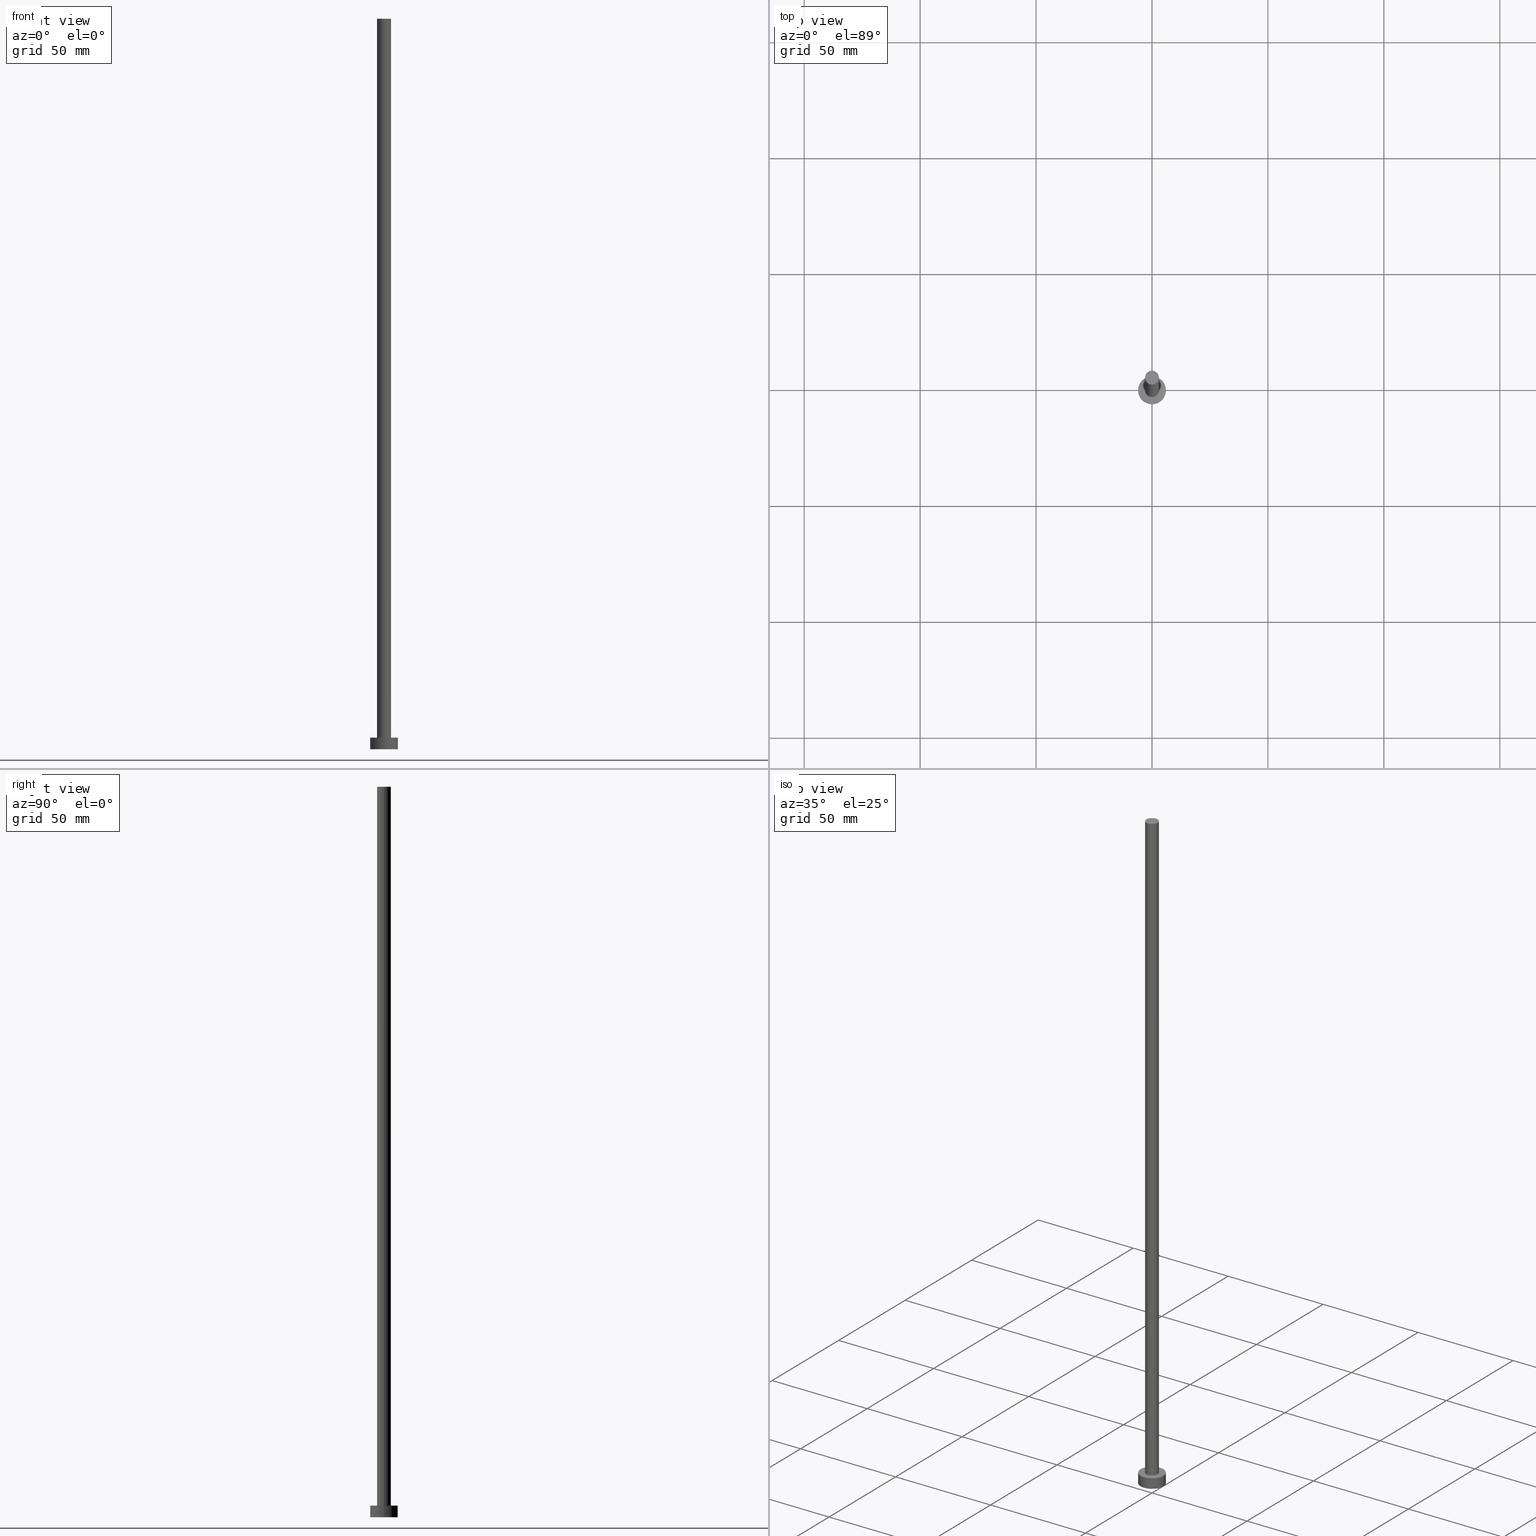
[diagram: canonical four-view strip — front | top / right | iso, engineering-drawing reading convention]
A machine part, canonical four-view strip (front | top / right | iso — engineering-drawing reading convention). The complete STEP part file that produces these views, byte-faithful:
ISO-10303-21;
HEADER;
FILE_DESCRIPTION (( 'STEP AP203' ),
    '1' );
FILE_NAME ('dd3d.STEP',
    '2023-02-13T15:44:45',
    ( '' ),
    ( '' ),
    'SwSTEP 2.0',
    'SolidWorks 2019',
    '' );
FILE_SCHEMA (( 'CONFIG_CONTROL_DESIGN' ));
ENDSEC;

DATA;
#1 = CC_DESIGN_DATE_AND_TIME_ASSIGNMENT ( #41, #202, ( #10 ) ) ;
#2 = MANIFOLD_SOLID_BREP ( 'P�idat vysunut�m3', #66 ) ;
#3 = CYLINDRICAL_SURFACE ( 'NONE', #52, 6.000000000000000888 ) ;
#4 = DIRECTION ( 'NONE',  ( 0.000000000000000000, 0.000000000000000000, 1.000000000000000000 ) ) ;
#5 = SECURITY_CLASSIFICATION_LEVEL ( 'unclassified' ) ;
#6 = PERSON_AND_ORGANIZATION ( #228, #252 ) ;
#7 = SHAPE_DEFINITION_REPRESENTATION ( #220, #38 ) ;
#8 = CIRCLE ( 'NONE', #176, 3.000000000000000444 ) ;
#9 = AXIS2_PLACEMENT_3D ( 'NONE', #21, #4, #111 ) ;
#10 = SECURITY_CLASSIFICATION ( '', '', #5 ) ;
#11 = DATE_AND_TIME ( #145, #167 ) ;
#12 = ORIENTED_EDGE ( 'NONE', *, *, #117, .T. ) ;
#13 = ORIENTED_EDGE ( 'NONE', *, *, #124, .T. ) ;
#14 = CIRCLE ( 'NONE', #184, 6.000000000000000888 ) ;
#15 = LOCAL_TIME ( 16, 44, 45.00000000000000000, #122 ) ;
#16 = ORIENTED_EDGE ( 'NONE', *, *, #27, .T. ) ;
#17 = ORIENTED_EDGE ( 'NONE', *, *, #238, .F. ) ;
#18 = VERTEX_POINT ( 'NONE', #151 ) ;
#19 = APPROVAL ( #183, 'NEUR�EN�' ) ;
#20 = DIRECTION ( 'NONE',  ( -0.000000000000000000, -0.000000000000000000, -1.000000000000000000 ) ) ;
#21 = CARTESIAN_POINT ( 'NONE',  ( 0.000000000000000000, 0.000000000000000000, 5.000000000000000000 ) ) ;
#22 = CARTESIAN_POINT ( 'NONE',  ( 0.000000000000000000, 0.000000000000000000, 5.000000000000000000 ) ) ;
#23 = DIRECTION ( 'NONE',  ( 1.000000000000000000, 0.000000000000000000, 0.000000000000000000 ) ) ;
#24 = DIRECTION ( 'NONE',  ( 0.000000000000000000, 0.000000000000000000, 1.000000000000000000 ) ) ;
#25 = PERSON_AND_ORGANIZATION ( #228, #252 ) ;
#26 = EDGE_CURVE ( 'NONE', #210, #33, #8, .T. ) ;
#27 = EDGE_CURVE ( 'NONE', #18, #90, #14, .T. ) ;
#28 = COORDINATED_UNIVERSAL_TIME_OFFSET ( 1, 0, .AHEAD. ) ;
#29 = CARTESIAN_POINT ( 'NONE',  ( 3.000000000000000444, 3.673940397442060361E-16, 315.0000000000000000 ) ) ;
#30 = ORIENTED_EDGE ( 'NONE', *, *, #45, .F. ) ;
#31 = CARTESIAN_POINT ( 'NONE',  ( 0.000000000000000000, 0.000000000000000000, 315.0000000000000000 ) ) ;
#32 = ORIENTED_EDGE ( 'NONE', *, *, #179, .T. ) ;
#33 = VERTEX_POINT ( 'NONE', #233 ) ;
#34 = LINE ( 'NONE', #139, #224 ) ;
#35 = DIRECTION ( 'NONE',  ( 0.000000000000000000, 0.000000000000000000, 1.000000000000000000 ) ) ;
#36 = DIRECTION ( 'NONE',  ( 1.000000000000000000, 0.000000000000000000, 0.000000000000000000 ) ) ;
#37 = FACE_OUTER_BOUND ( 'NONE', #153, .T. ) ;
#38 = ADVANCED_BREP_SHAPE_REPRESENTATION ( 'dd3d', ( #2, #127 ), #207 ) ;
#39 = DIRECTION ( 'NONE',  ( 1.000000000000000000, 0.000000000000000000, -0.000000000000000000 ) ) ;
#40 = AXIS2_PLACEMENT_3D ( 'NONE', #159, #76, #178 ) ;
#41 = DATE_AND_TIME ( #141, #212 ) ;
#42 = ADVANCED_FACE ( 'NONE', ( #92 ), #53, .T. ) ;
#43 = CIRCLE ( 'NONE', #131, 3.000000000000000444 ) ;
#44 = CALENDAR_DATE ( 2023, 13, 2 ) ;
#45 = EDGE_CURVE ( 'NONE', #168, #249, #196, .T. ) ;
#46 = CC_DESIGN_PERSON_AND_ORGANIZATION_ASSIGNMENT ( #100, #242, ( #10 ) ) ;
#47 = COORDINATED_UNIVERSAL_TIME_OFFSET ( 1, 0, .AHEAD. ) ;
#48 = VECTOR ( 'NONE', #57, 1000.000000000000000 ) ;
#49 = PLANE ( 'NONE',  #91 ) ;
#50 = ORIENTED_EDGE ( 'NONE', *, *, #134, .F. ) ;
#51 = EDGE_LOOP ( 'NONE', ( #65, #189, #110, #148 ) ) ;
#52 = AXIS2_PLACEMENT_3D ( 'NONE', #94, #192, #199 ) ;
#53 = PLANE ( 'NONE',  #206 ) ;
#54 = ADVANCED_FACE ( 'NONE', ( #165 ), #248, .T. ) ;
#55 = PLANE ( 'NONE',  #56 ) ;
#56 = AXIS2_PLACEMENT_3D ( 'NONE', #239, #115, #39 ) ;
#57 = DIRECTION ( 'NONE',  ( -0.000000000000000000, -0.000000000000000000, -1.000000000000000000 ) ) ;
#58 = CARTESIAN_POINT ( 'NONE',  ( -6.000000000000000888, 0.000000000000000000, 5.000000000000000000 ) ) ;
#59 = FACE_OUTER_BOUND ( 'NONE', #132, .T. ) ;
#60 = COORDINATED_UNIVERSAL_TIME_OFFSET ( 1, 0, .AHEAD. ) ;
#61 = APPROVAL ( #64, 'NEUR�EN�' ) ;
#62 = PERSON_AND_ORGANIZATION_ROLE ( 'creator' ) ;
#63 = DATE_TIME_ROLE ( 'creation_date' ) ;
#64 = APPROVAL_STATUS ( 'not_yet_approved' ) ;
#65 = ORIENTED_EDGE ( 'NONE', *, *, #154, .F. ) ;
#66 = CLOSED_SHELL ( 'NONE', ( #161, #172, #152, #138, #77, #54, #42 ) ) ;
#67 = DIRECTION ( 'NONE',  ( 1.000000000000000000, 0.000000000000000000, 0.000000000000000000 ) ) ;
#68 = APPLICATION_CONTEXT ( 'configuration controlled 3d designs of mechanical parts and assemblies' ) ;
#69 = EDGE_LOOP ( 'NONE', ( #109, #107 ) ) ;
#70 = FACE_OUTER_BOUND ( 'NONE', #69, .T. ) ;
#71 = EDGE_LOOP ( 'NONE', ( #17, #86, #13, #147 ) ) ;
#72 = DIRECTION ( 'NONE',  ( -1.000000000000000000, 0.000000000000000000, 0.000000000000000000 ) ) ;
#73 = DIRECTION ( 'NONE',  ( -1.000000000000000000, 0.000000000000000000, 0.000000000000000000 ) ) ;
#74 = CC_DESIGN_SECURITY_CLASSIFICATION ( #10, ( #80 ) ) ;
#75 = CARTESIAN_POINT ( 'NONE',  ( 0.000000000000000000, 0.000000000000000000, 315.0000000000000000 ) ) ;
#76 = DIRECTION ( 'NONE',  ( 0.000000000000000000, 0.000000000000000000, 1.000000000000000000 ) ) ;
#77 = ADVANCED_FACE ( 'NONE', ( #70 ), #49, .F. ) ;
#78 = DIRECTION ( 'NONE',  ( -0.000000000000000000, -0.000000000000000000, -1.000000000000000000 ) ) ;
#79 = CC_DESIGN_PERSON_AND_ORGANIZATION_ASSIGNMENT ( #25, #142, ( #245 ) ) ;
#80 = PRODUCT_DEFINITION_FORMATION_WITH_SPECIFIED_SOURCE ( 'LIBOVOLN�', '', #245, .NOT_KNOWN. ) ;
#81 = DATE_AND_TIME ( #83, #15 ) ;
#82 = PERSON_AND_ORGANIZATION ( #228, #252 ) ;
#83 = CALENDAR_DATE ( 2023, 13, 2 ) ;
#84 = PERSON_AND_ORGANIZATION_ROLE ( 'design_supplier' ) ;
#85 = DIRECTION ( 'NONE',  ( 0.000000000000000000, 0.000000000000000000, 1.000000000000000000 ) ) ;
#86 = ORIENTED_EDGE ( 'NONE', *, *, #179, .F. ) ;
#87 = LOCAL_TIME ( 16, 44, 45.00000000000000000, #28 ) ;
#88 = ORIENTED_EDGE ( 'NONE', *, *, #26, .F. ) ;
#89 = CC_DESIGN_PERSON_AND_ORGANIZATION_ASSIGNMENT ( #185, #84, ( #80 ) ) ;
#90 = VERTEX_POINT ( 'NONE', #130 ) ;
#91 = AXIS2_PLACEMENT_3D ( 'NONE', #208, #150, #190 ) ;
#92 = FACE_OUTER_BOUND ( 'NONE', #170, .T. ) ;
#93 =( NAMED_UNIT ( * ) SI_UNIT ( $, .STERADIAN. ) SOLID_ANGLE_UNIT ( ) );
#94 = CARTESIAN_POINT ( 'NONE',  ( 0.000000000000000000, 0.000000000000000000, 5.000000000000000000 ) ) ;
#95 = CARTESIAN_POINT ( 'NONE',  ( 0.000000000000000000, 0.000000000000000000, 315.0000000000000000 ) ) ;
#96 = CYLINDRICAL_SURFACE ( 'NONE', #104, 3.000000000000000444 ) ;
#97 = DIRECTION ( 'NONE',  ( -0.000000000000000000, -0.000000000000000000, -1.000000000000000000 ) ) ;
#98 = PERSON_AND_ORGANIZATION ( #228, #252 ) ;
#99 = COORDINATED_UNIVERSAL_TIME_OFFSET ( 1, 0, .AHEAD. ) ;
#100 = PERSON_AND_ORGANIZATION ( #228, #252 ) ;
#101 = APPLICATION_CONTEXT ( 'configuration controlled 3d designs of mechanical parts and assemblies' ) ;
#102 = APPROVAL_DATE_TIME ( #121, #19 ) ;
#103 = ORIENTED_EDGE ( 'NONE', *, *, #125, .T. ) ;
#104 = AXIS2_PLACEMENT_3D ( 'NONE', #177, #135, #136 ) ;
#105 = PRODUCT_DEFINITION ( 'NEZN�M�', '', #80, #237 ) ;
#106 = VERTEX_POINT ( 'NONE', #29 ) ;
#107 = ORIENTED_EDGE ( 'NONE', *, *, #117, .F. ) ;
#108 = ORIENTED_EDGE ( 'NONE', *, *, #125, .F. ) ;
#109 = ORIENTED_EDGE ( 'NONE', *, *, #27, .F. ) ;
#110 = ORIENTED_EDGE ( 'NONE', *, *, #26, .T. ) ;
#111 = DIRECTION ( 'NONE',  ( 1.000000000000000000, 0.000000000000000000, 0.000000000000000000 ) ) ;
#112 = APPROVAL_PERSON_ORGANIZATION ( #98, #19, #244 ) ;
#113 = CC_DESIGN_PERSON_AND_ORGANIZATION_ASSIGNMENT ( #221, #223, ( #105 ) ) ;
#114 = DIRECTION ( 'NONE',  ( -0.000000000000000000, -0.000000000000000000, -1.000000000000000000 ) ) ;
#115 = DIRECTION ( 'NONE',  ( 0.000000000000000000, 0.000000000000000000, 1.000000000000000000 ) ) ;
#116 = FACE_BOUND ( 'NONE', #246, .T. ) ;
#117 = EDGE_CURVE ( 'NONE', #90, #18, #241, .T. ) ;
#118 = CIRCLE ( 'NONE', #40, 6.000000000000000888 ) ;
#119 = CARTESIAN_POINT ( 'NONE',  ( 6.000000000000000888, 7.347880794884120722E-16, 5.000000000000000000 ) ) ;
#120 = PERSON_AND_ORGANIZATION ( #228, #252 ) ;
#121 = DATE_AND_TIME ( #44, #87 ) ;
#122 = COORDINATED_UNIVERSAL_TIME_OFFSET ( 1, 0, .AHEAD. ) ;
#123 = DIRECTION ( 'NONE',  ( 1.000000000000000000, 0.000000000000000000, 0.000000000000000000 ) ) ;
#124 = EDGE_CURVE ( 'NONE', #164, #33, #158, .T. ) ;
#125 = EDGE_CURVE ( 'NONE', #168, #90, #34, .T. ) ;
#126 = DIRECTION ( 'NONE',  ( 0.000000000000000000, 0.000000000000000000, 1.000000000000000000 ) ) ;
#127 = AXIS2_PLACEMENT_3D ( 'NONE', #219, #24, #123 ) ;
#128 = CARTESIAN_POINT ( 'NONE',  ( 0.000000000000000000, 0.000000000000000000, 315.0000000000000000 ) ) ;
#129 = EDGE_LOOP ( 'NONE', ( #30, #103, #12, #50 ) ) ;
#130 = CARTESIAN_POINT ( 'NONE',  ( 6.000000000000000888, 7.347880794884120722E-16, 0.000000000000000000 ) ) ;
#131 = AXIS2_PLACEMENT_3D ( 'NONE', #95, #197, #23 ) ;
#132 = EDGE_LOOP ( 'NONE', ( #229, #188 ) ) ;
#133 =( LENGTH_UNIT ( ) NAMED_UNIT ( * ) SI_UNIT ( .MILLI., .METRE. ) );
#134 = EDGE_CURVE ( 'NONE', #249, #18, #214, .T. ) ;
#135 = DIRECTION ( 'NONE',  ( -0.000000000000000000, -0.000000000000000000, -1.000000000000000000 ) ) ;
#136 = DIRECTION ( 'NONE',  ( -1.000000000000000000, 0.000000000000000000, 0.000000000000000000 ) ) ;
#137 = PRODUCT_RELATED_PRODUCT_CATEGORY ( 'detail', '', ( #245 ) ) ;
#138 = ADVANCED_FACE ( 'NONE', ( #116, #59 ), #55, .T. ) ;
#139 = CARTESIAN_POINT ( 'NONE',  ( 6.000000000000000888, 7.347880794884120722E-16, 5.000000000000000000 ) ) ;
#140 = CC_DESIGN_APPROVAL ( #61, ( #105 ) ) ;
#141 = CALENDAR_DATE ( 2023, 13, 2 ) ;
#142 = PERSON_AND_ORGANIZATION_ROLE ( 'design_owner' ) ;
#143 = APPROVAL_ROLE ( '' ) ;
#144 = AXIS2_PLACEMENT_3D ( 'NONE', #22, #78, #73 ) ;
#145 = CALENDAR_DATE ( 2023, 13, 2 ) ;
#146 = APPROVAL_DATE_TIME ( #11, #61 ) ;
#147 = ORIENTED_EDGE ( 'NONE', *, *, #247, .T. ) ;
#148 = ORIENTED_EDGE ( 'NONE', *, *, #124, .F. ) ;
#149 = ORIENTED_EDGE ( 'NONE', *, *, #134, .T. ) ;
#150 = DIRECTION ( 'NONE',  ( 0.000000000000000000, 0.000000000000000000, 1.000000000000000000 ) ) ;
#151 = CARTESIAN_POINT ( 'NONE',  ( -6.000000000000000888, 0.000000000000000000, 0.000000000000000000 ) ) ;
#152 = ADVANCED_FACE ( 'NONE', ( #37 ), #155, .T. ) ;
#153 = EDGE_LOOP ( 'NONE', ( #108, #230, #149, #16 ) ) ;
#154 = EDGE_CURVE ( 'NONE', #106, #164, #43, .T. ) ;
#155 = CYLINDRICAL_SURFACE ( 'NONE', #144, 6.000000000000000888 ) ;
#156 = DIRECTION ( 'NONE',  ( 1.000000000000000000, 0.000000000000000000, 0.000000000000000000 ) ) ;
#157 = LINE ( 'NONE', #236, #193 ) ;
#158 = LINE ( 'NONE', #234, #48 ) ;
#159 = CARTESIAN_POINT ( 'NONE',  ( 0.000000000000000000, 0.000000000000000000, 5.000000000000000000 ) ) ;
#160 = AXIS2_PLACEMENT_3D ( 'NONE', #128, #253, #72 ) ;
#161 = ADVANCED_FACE ( 'NONE', ( #194 ), #96, .T. ) ;
#162 = CALENDAR_DATE ( 2023, 13, 2 ) ;
#163 = APPROVAL_DATE_TIME ( #81, #200 ) ;
#164 = VERTEX_POINT ( 'NONE', #218 ) ;
#165 = FACE_OUTER_BOUND ( 'NONE', #71, .T. ) ;
#166 = AXIS2_PLACEMENT_3D ( 'NONE', #211, #35, #156 ) ;
#167 = LOCAL_TIME ( 16, 44, 45.00000000000000000, #99 ) ;
#168 = VERTEX_POINT ( 'NONE', #119 ) ;
#169 = DIRECTION ( 'NONE',  ( 0.000000000000000000, 0.000000000000000000, 1.000000000000000000 ) ) ;
#170 = EDGE_LOOP ( 'NONE', ( #32, #251 ) ) ;
#171 = AXIS2_PLACEMENT_3D ( 'NONE', #250, #126, #213 ) ;
#172 = ADVANCED_FACE ( 'NONE', ( #216 ), #3, .T. ) ;
#173 = DIRECTION ( 'NONE',  ( 0.000000000000000000, 0.000000000000000000, 1.000000000000000000 ) ) ;
#174 = LOCAL_TIME ( 16, 44, 45.00000000000000000, #47 ) ;
#175 = DIRECTION ( 'NONE',  ( 0.000000000000000000, 0.000000000000000000, 1.000000000000000000 ) ) ;
#176 = AXIS2_PLACEMENT_3D ( 'NONE', #209, #85, #191 ) ;
#177 = CARTESIAN_POINT ( 'NONE',  ( 0.000000000000000000, 0.000000000000000000, 315.0000000000000000 ) ) ;
#178 = DIRECTION ( 'NONE',  ( 1.000000000000000000, 0.000000000000000000, 0.000000000000000000 ) ) ;
#179 = EDGE_CURVE ( 'NONE', #164, #106, #231, .T. ) ;
#180 = DATE_AND_TIME ( #162, #174 ) ;
#181 = APPROVAL_ROLE ( '' ) ;
#182 = CC_DESIGN_DATE_AND_TIME_ASSIGNMENT ( #180, #63, ( #105 ) ) ;
#183 = APPROVAL_STATUS ( 'not_yet_approved' ) ;
#184 = AXIS2_PLACEMENT_3D ( 'NONE', #232, #173, #67 ) ;
#185 = PERSON_AND_ORGANIZATION ( #228, #252 ) ;
#186 = CC_DESIGN_APPROVAL ( #200, ( #10 ) ) ;
#187 = ORIENTED_EDGE ( 'NONE', *, *, #247, .F. ) ;
#188 = ORIENTED_EDGE ( 'NONE', *, *, #45, .T. ) ;
#189 = ORIENTED_EDGE ( 'NONE', *, *, #238, .T. ) ;
#190 = DIRECTION ( 'NONE',  ( 1.000000000000000000, 0.000000000000000000, -0.000000000000000000 ) ) ;
#191 = DIRECTION ( 'NONE',  ( 1.000000000000000000, 0.000000000000000000, 0.000000000000000000 ) ) ;
#192 = DIRECTION ( 'NONE',  ( -0.000000000000000000, -0.000000000000000000, -1.000000000000000000 ) ) ;
#193 = VECTOR ( 'NONE', #97, 1000.000000000000000 ) ;
#194 = FACE_OUTER_BOUND ( 'NONE', #51, .T. ) ;
#195 = CARTESIAN_POINT ( 'NONE',  ( 3.000000000000000444, 3.673940397442060361E-16, 5.000000000000000000 ) ) ;
#196 = CIRCLE ( 'NONE', #171, 6.000000000000000888 ) ;
#197 = DIRECTION ( 'NONE',  ( 0.000000000000000000, 0.000000000000000000, 1.000000000000000000 ) ) ;
#198 = UNCERTAINTY_MEASURE_WITH_UNIT (LENGTH_MEASURE( 1.000000000000000082E-05 ), #133, 'distance_accuracy_value', 'NONE');
#199 = DIRECTION ( 'NONE',  ( -1.000000000000000000, 0.000000000000000000, 0.000000000000000000 ) ) ;
#200 = APPROVAL ( #222, 'NEUR�EN�' ) ;
#201 = MECHANICAL_CONTEXT ( 'NONE', #101, 'mechanical' ) ;
#202 = DATE_TIME_ROLE ( 'classification_date' ) ;
#203 = CIRCLE ( 'NONE', #9, 3.000000000000000444 ) ;
#204 = APPLICATION_PROTOCOL_DEFINITION ( 'international standard', 'config_control_design', 1994, #68 ) ;
#205 = APPLICATION_PROTOCOL_DEFINITION ( 'international standard', 'config_control_design', 1994, #101 ) ;
#206 = AXIS2_PLACEMENT_3D ( 'NONE', #31, #169, #227 ) ;
#207 =( GEOMETRIC_REPRESENTATION_CONTEXT ( 3 ) GLOBAL_UNCERTAINTY_ASSIGNED_CONTEXT ( ( #198 ) ) GLOBAL_UNIT_ASSIGNED_CONTEXT ( ( #133, #217, #93 ) ) REPRESENTATION_CONTEXT ( 'NONE', 'WORKASPACE' ) );
#208 = CARTESIAN_POINT ( 'NONE',  ( 0.000000000000000000, 0.000000000000000000, 0.000000000000000000 ) ) ;
#209 = CARTESIAN_POINT ( 'NONE',  ( 0.000000000000000000, 0.000000000000000000, 5.000000000000000000 ) ) ;
#210 = VERTEX_POINT ( 'NONE', #195 ) ;
#211 = CARTESIAN_POINT ( 'NONE',  ( 0.000000000000000000, 0.000000000000000000, 0.000000000000000000 ) ) ;
#212 = LOCAL_TIME ( 16, 44, 45.00000000000000000, #60 ) ;
#213 = DIRECTION ( 'NONE',  ( 1.000000000000000000, 0.000000000000000000, 0.000000000000000000 ) ) ;
#214 = LINE ( 'NONE', #255, #254 ) ;
#215 = AXIS2_PLACEMENT_3D ( 'NONE', #75, #175, #36 ) ;
#216 = FACE_OUTER_BOUND ( 'NONE', #129, .T. ) ;
#217 =( NAMED_UNIT ( * ) PLANE_ANGLE_UNIT ( ) SI_UNIT ( $, .RADIAN. ) );
#218 = CARTESIAN_POINT ( 'NONE',  ( -3.000000000000000444, 0.000000000000000000, 315.0000000000000000 ) ) ;
#219 = CARTESIAN_POINT ( 'NONE',  ( 0.000000000000000000, 0.000000000000000000, 0.000000000000000000 ) ) ;
#220 = PRODUCT_DEFINITION_SHAPE ( 'NONE', 'NONE',  #105 ) ;
#221 = PERSON_AND_ORGANIZATION ( #228, #252 ) ;
#222 = APPROVAL_STATUS ( 'not_yet_approved' ) ;
#223 = PERSON_AND_ORGANIZATION_ROLE ( 'creator' ) ;
#224 = VECTOR ( 'NONE', #114, 1000.000000000000000 ) ;
#225 = CC_DESIGN_PERSON_AND_ORGANIZATION_ASSIGNMENT ( #6, #62, ( #80 ) ) ;
#226 = APPROVAL_PERSON_ORGANIZATION ( #120, #200, #181 ) ;
#227 = DIRECTION ( 'NONE',  ( 1.000000000000000000, 0.000000000000000000, -0.000000000000000000 ) ) ;
#228 = PERSON ( 'NEUR�EN�', 'NEUR�EN�', 'NEUR�EN�', ('NEUR�EN�'), ('NEUR�EN�'), ('NEUR�EN�') ) ;
#229 = ORIENTED_EDGE ( 'NONE', *, *, #240, .T. ) ;
#230 = ORIENTED_EDGE ( 'NONE', *, *, #240, .F. ) ;
#231 = CIRCLE ( 'NONE', #215, 3.000000000000000444 ) ;
#232 = CARTESIAN_POINT ( 'NONE',  ( 0.000000000000000000, 0.000000000000000000, 0.000000000000000000 ) ) ;
#233 = CARTESIAN_POINT ( 'NONE',  ( -3.000000000000000444, 0.000000000000000000, 5.000000000000000000 ) ) ;
#234 = CARTESIAN_POINT ( 'NONE',  ( -3.000000000000000444, 0.000000000000000000, 315.0000000000000000 ) ) ;
#235 = CC_DESIGN_APPROVAL ( #19, ( #80 ) ) ;
#236 = CARTESIAN_POINT ( 'NONE',  ( 3.000000000000000444, 3.673940397442060361E-16, 315.0000000000000000 ) ) ;
#237 = DESIGN_CONTEXT ( 'detailed design', #68, 'design' ) ;
#238 = EDGE_CURVE ( 'NONE', #106, #210, #157, .T. ) ;
#239 = CARTESIAN_POINT ( 'NONE',  ( 0.000000000000000000, 0.000000000000000000, 5.000000000000000000 ) ) ;
#240 = EDGE_CURVE ( 'NONE', #249, #168, #118, .T. ) ;
#241 = CIRCLE ( 'NONE', #166, 6.000000000000000888 ) ;
#242 = PERSON_AND_ORGANIZATION_ROLE ( 'classification_officer' ) ;
#243 = APPROVAL_PERSON_ORGANIZATION ( #82, #61, #143 ) ;
#244 = APPROVAL_ROLE ( '' ) ;
#245 = PRODUCT ( 'dd3d', 'dd3d', '', ( #201 ) ) ;
#246 = EDGE_LOOP ( 'NONE', ( #187, #88 ) ) ;
#247 = EDGE_CURVE ( 'NONE', #33, #210, #203, .T. ) ;
#248 = CYLINDRICAL_SURFACE ( 'NONE', #160, 3.000000000000000444 ) ;
#249 = VERTEX_POINT ( 'NONE', #58 ) ;
#250 = CARTESIAN_POINT ( 'NONE',  ( 0.000000000000000000, 0.000000000000000000, 5.000000000000000000 ) ) ;
#251 = ORIENTED_EDGE ( 'NONE', *, *, #154, .T. ) ;
#252 = ORGANIZATION ( 'NEUR�EN�', 'NEUR�EN�', '' ) ;
#253 = DIRECTION ( 'NONE',  ( -0.000000000000000000, -0.000000000000000000, -1.000000000000000000 ) ) ;
#254 = VECTOR ( 'NONE', #20, 1000.000000000000000 ) ;
#255 = CARTESIAN_POINT ( 'NONE',  ( -6.000000000000000888, 0.000000000000000000, 5.000000000000000000 ) ) ;
ENDSEC;
END-ISO-10303-21;
